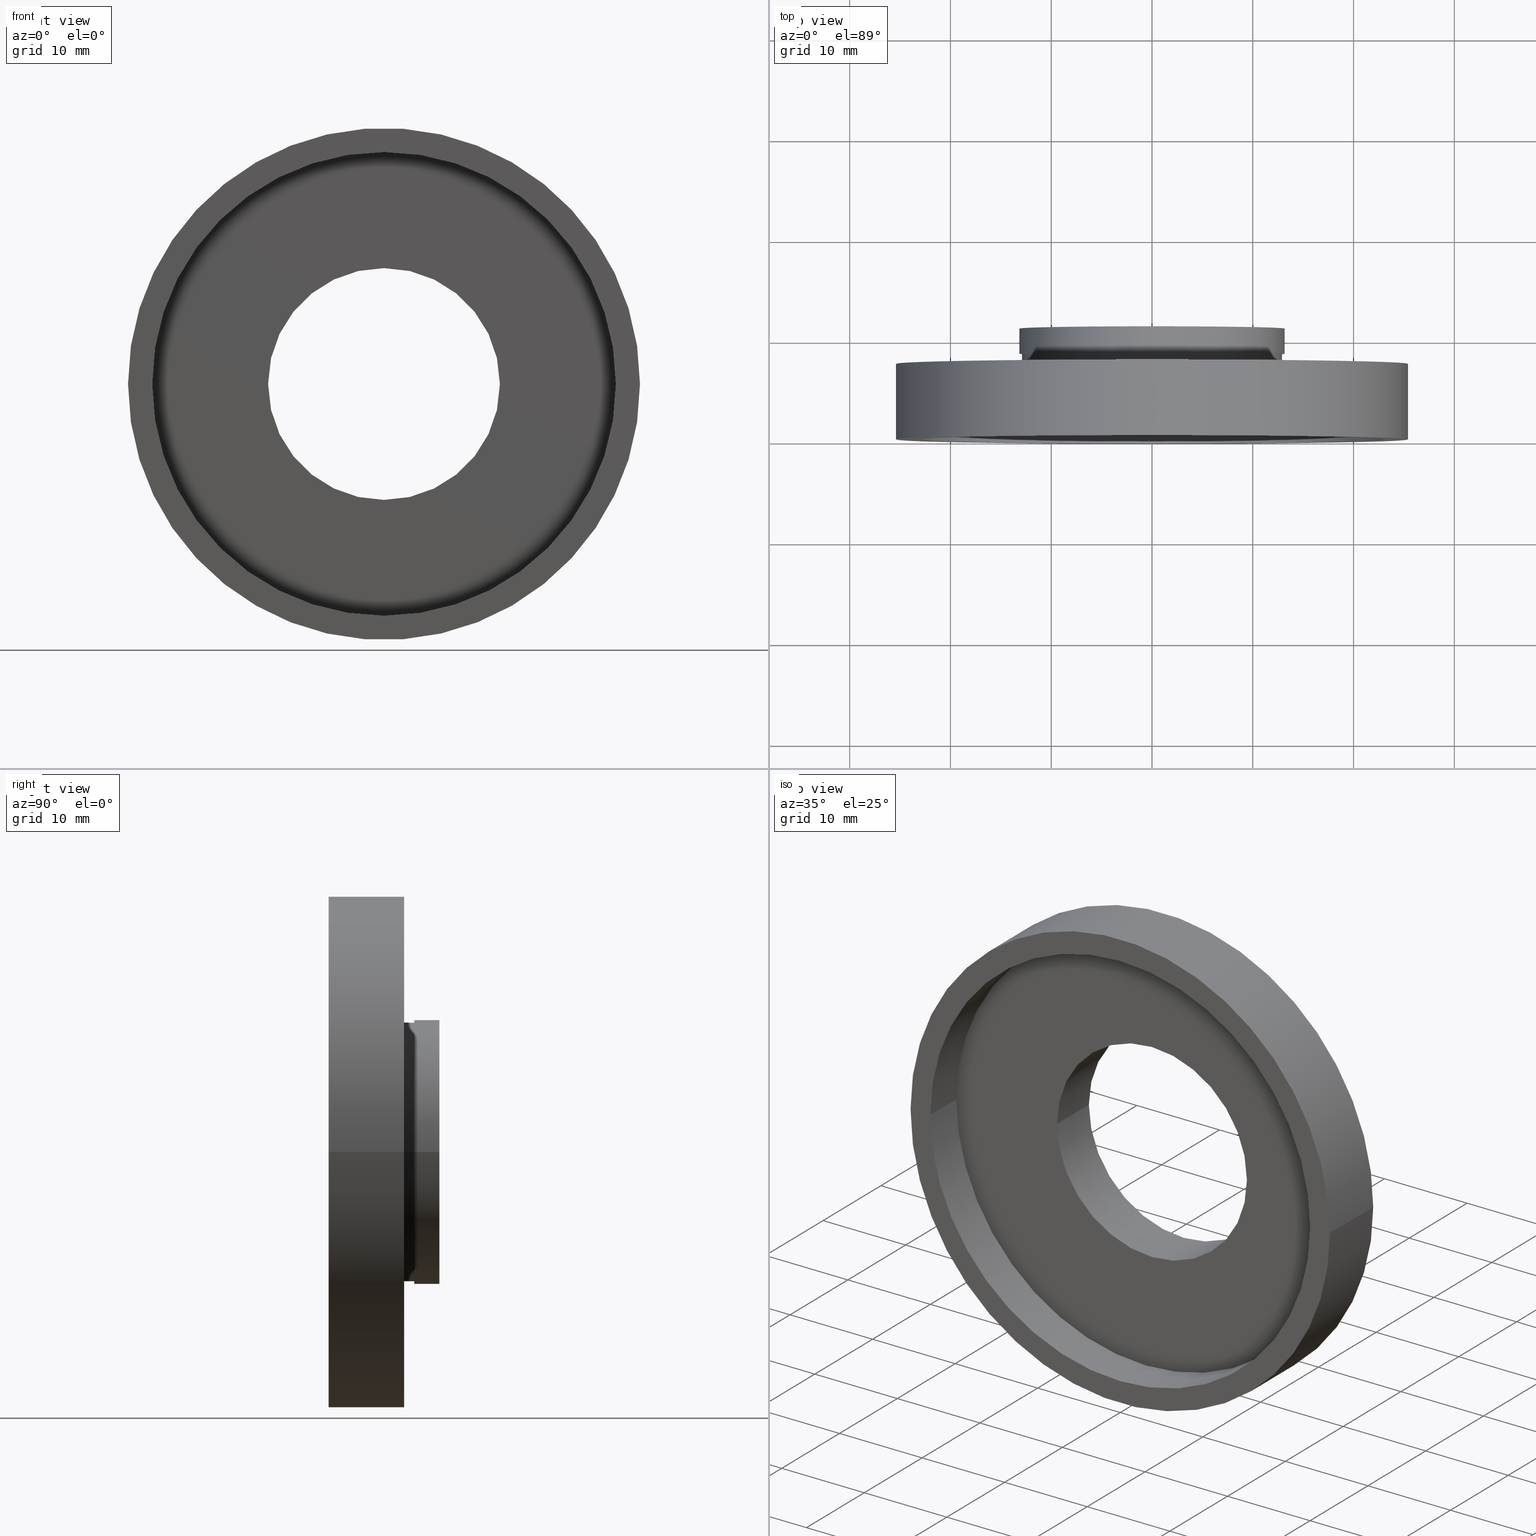
[diagram: canonical four-view strip — front | top / right | iso, engineering-drawing reading convention]
A machine part, canonical four-view strip (front | top / right | iso — engineering-drawing reading convention). The complete STEP part file that produces these views, byte-faithful:
ISO-10303-21;
HEADER;
FILE_DESCRIPTION (( 'STEP AP214' ),
    '1' );
FILE_NAME ('504112.STEP',
    '2019-10-09T07:33:23',
    ( '' ),
    ( '' ),
    'SwSTEP 2.0',
    'SolidWorks 2016',
    '' );
FILE_SCHEMA (( 'AUTOMOTIVE_DESIGN' ));
ENDSEC;

DATA;
#1 = VERTEX_POINT ( 'NONE', #564 ) ;
#2 = CARTESIAN_POINT ( 'NONE',  ( 11.50000000000000000, 16.88601823708207700, 1.408343819019456200E-015 ) ) ;
#3 = PLANE ( 'NONE',  #583 ) ;
#4 = FILL_AREA_STYLE ('',( #292 ) ) ;
#5 = DIRECTION ( 'NONE',  ( -1.224646799147351000E-016, 1.000000000000000000, -0.0000000000000000000 ) ) ;
#6 = ORIENTED_EDGE ( 'NONE', *, *, #578, .T. ) ;
#7 = AXIS2_PLACEMENT_3D ( 'NONE', #206, #553, #156 ) ;
#8 = DIRECTION ( 'NONE',  ( -1.224646799147351000E-016, 1.000000000000000000, -0.0000000000000000000 ) ) ;
#9 = EDGE_LOOP ( 'NONE', ( #133, #549, #48, #330 ) ) ;
#10 = DIRECTION ( 'NONE',  ( -1.000000000000000000, -1.365923996832131600E-016, 0.0000000000000000000 ) ) ;
#11 = PRODUCT_CONTEXT ( 'NONE', #297, 'mechanical' ) ;
#12 = CARTESIAN_POINT ( 'NONE',  ( 1.394385078907593200E-015, 5.499999999999996400, 0.0000000000000000000 ) ) ;
#13 = EDGE_CURVE ( 'NONE', #68, #466, #99, .T. ) ;
#14 = FACE_BOUND ( 'NONE', #276, .T. ) ;
#15 = CARTESIAN_POINT ( 'NONE',  ( 0.0000000000000000000, 0.0000000000000000000, 0.0000000000000000000 ) ) ;
#16 = SURFACE_SIDE_STYLE ('',( #582 ) ) ;
#17 = ORIENTED_EDGE ( 'NONE', *, *, #80, .F. ) ;
#18 = DIRECTION ( 'NONE',  ( -1.000000000000000000, -1.224646799147351000E-016, 0.0000000000000000000 ) ) ;
#19 = SURFACE_STYLE_USAGE ( .BOTH. , #590 ) ;
#20 = CARTESIAN_POINT ( 'NONE',  ( 1.149455719078123100E-015, 7.499999999999996400, 0.0000000000000000000 ) ) ;
#21 = ORIENTED_EDGE ( 'NONE', *, *, #517, .T. ) ;
#22 = SURFACE_SIDE_STYLE ('',( #231 ) ) ;
#23 = DIRECTION ( 'NONE',  ( 1.000000000000000000, 1.224646799147351000E-016, 0.0000000000000000000 ) ) ;
#24 = EDGE_LOOP ( 'NONE', ( #241, #401 ) ) ;
#25 = FILL_AREA_STYLE_COLOUR ( '', #242 ) ;
#26 = SURFACE_STYLE_USAGE ( .BOTH. , #167 ) ;
#27 = AXIS2_PLACEMENT_3D ( 'NONE', #124, #354, #75 ) ;
#28 = DIRECTION ( 'NONE',  ( -1.000000000000000000, -1.224646799147351000E-016, 0.0000000000000000000 ) ) ;
#29 = ADVANCED_FACE ( 'NONE', ( #235 ), #352, .F. ) ;
#30 = EDGE_LOOP ( 'NONE', ( #339, #550 ) ) ;
#31 = CARTESIAN_POINT ( 'NONE',  ( -24.10000000000000100, 16.88601823708207300, 0.0000000000000000000 ) ) ;
#32 = DIRECTION ( 'NONE',  ( -1.000000000000000000, -1.318178933113075200E-016, 0.0000000000000000000 ) ) ;
#33 = MECHANICAL_DESIGN_GEOMETRIC_PRESENTATION_REPRESENTATION (  '', ( #191 ), #622 ) ;
#34 = FACE_OUTER_BOUND ( 'NONE', #408, .T. ) ;
#35 = ORIENTED_EDGE ( 'NONE', *, *, #384, .T. ) ;
#36 =( LENGTH_UNIT ( ) NAMED_UNIT ( * ) SI_UNIT ( .MILLI., .METRE. ) );
#37 = VERTEX_POINT ( 'NONE', #270 ) ;
#38 = CARTESIAN_POINT ( 'NONE',  ( -25.39999999999999100, -6.580049821787884700E-015, 0.0000000000000000000 ) ) ;
#39 = ORIENTED_EDGE ( 'NONE', *, *, #185, .T. ) ;
#40 = CARTESIAN_POINT ( 'NONE',  ( 0.0000000000000000000, 16.88601823708207700, 0.0000000000000000000 ) ) ;
#41 = FACE_OUTER_BOUND ( 'NONE', #43, .T. ) ;
#42 = ADVANCED_FACE ( 'NONE', ( #479 ), #228, .T. ) ;
#43 = EDGE_LOOP ( 'NONE', ( #505, #375 ) ) ;
#44 = ORIENTED_EDGE ( 'NONE', *, *, #611, .T. ) ;
#45 = VECTOR ( 'NONE', #277, 1000.000000000000000 ) ;
#46 = AXIS2_PLACEMENT_3D ( 'NONE', #40, #576, #368 ) ;
#47 = COLOUR_RGB ( '',1.000000000000000000, 1.000000000000000000, 1.000000000000000000 ) ;
#48 = ORIENTED_EDGE ( 'NONE', *, *, #95, .T. ) ;
#49 = ADVANCED_FACE ( 'NONE', ( #559 ), #138, .T. ) ;
#50 = VERTEX_POINT ( 'NONE', #571 ) ;
#51 = ORIENTED_EDGE ( 'NONE', *, *, #334, .F. ) ;
#52 = DIRECTION ( 'NONE',  ( -1.000000000000000000, -1.344746880602176000E-016, 0.0000000000000000000 ) ) ;
#53 = DIRECTION ( 'NONE',  ( 1.000000000000000000, 1.224646799147351000E-016, 0.0000000000000000000 ) ) ;
#54 = ORIENTED_EDGE ( 'NONE', *, *, #215, .F. ) ;
#55 = FACE_OUTER_BOUND ( 'NONE', #475, .T. ) ;
#56 = PLANE ( 'NONE',  #326 ) ;
#57 = MECHANICAL_DESIGN_GEOMETRIC_PRESENTATION_REPRESENTATION (  '', ( #459 ), #245 ) ;
#58 = CARTESIAN_POINT ( 'NONE',  ( 0.0000000000000000000, 16.88601823708207700, 0.0000000000000000000 ) ) ;
#59 = CARTESIAN_POINT ( 'NONE',  ( -23.00000000000000400, 4.499999999999994700, 0.0000000000000000000 ) ) ;
#60 = DIRECTION ( 'NONE',  ( 1.224646799147351000E-016, -1.000000000000000000, 0.0000000000000000000 ) ) ;
#61 =( NAMED_UNIT ( * ) PLANE_ANGLE_UNIT ( ) SI_UNIT ( $, .RADIAN. ) );
#62 =( NAMED_UNIT ( * ) SI_UNIT ( $, .STERADIAN. ) SOLID_ANGLE_UNIT ( ) );
#63 = VECTOR ( 'NONE', #514, 1000.000000000000000 ) ;
#64 = AXIS2_PLACEMENT_3D ( 'NONE', #554, #461, #509 ) ;
#65 = CARTESIAN_POINT ( 'NONE',  ( 25.39999999999999900, -3.588440821193433400E-016, 3.110602869834276900E-015 ) ) ;
#66 = DIRECTION ( 'NONE',  ( -1.224646799147351000E-016, 1.000000000000000000, -0.0000000000000000000 ) ) ;
#67 = CARTESIAN_POINT ( 'NONE',  ( 13.16000000000000200, 8.500000000000000000, 1.611635187677917100E-015 ) ) ;
#68 = VERTEX_POINT ( 'NONE', #573 ) ;
#69 = CARTESIAN_POINT ( 'NONE',  ( 1.516849758822328300E-015, 4.499999999999997300, 0.0000000000000000000 ) ) ;
#70 =( NAMED_UNIT ( * ) PLANE_ANGLE_UNIT ( ) SI_UNIT ( $, .RADIAN. ) );
#71 = ORIENTED_EDGE ( 'NONE', *, *, #424, .T. ) ;
#72 = CARTESIAN_POINT ( 'NONE',  ( 13.16000000000000000, 8.500000000000000000, 0.0000000000000000000 ) ) ;
#73 = DIRECTION ( 'NONE',  ( -1.000000000000000000, -1.079703408284319800E-016, 0.0000000000000000000 ) ) ;
#74 = AXIS2_PLACEMENT_3D ( 'NONE', #169, #356, #122 ) ;
#75 = DIRECTION ( 'NONE',  ( -1.000000000000000000, -1.508455196501571200E-016, 0.0000000000000000000 ) ) ;
#76 = VERTEX_POINT ( 'NONE', #38 ) ;
#77 = CIRCLE ( 'NONE', #227, 25.39999999999999500 ) ;
#78 = VECTOR ( 'NONE', #420, 1000.000000000000000 ) ;
#79 = CARTESIAN_POINT ( 'NONE',  ( -11.50000000000000200, 10.99999999999999500, 0.0000000000000000000 ) ) ;
#80 = EDGE_CURVE ( 'NONE', #381, #217, #503, .T. ) ;
#81 = SURFACE_STYLE_USAGE ( .BOTH. , #467 ) ;
#82 = STYLED_ITEM ( 'NONE', ( #460 ), #211 ) ;
#83 = CYLINDRICAL_SURFACE ( 'NONE', #538, 25.39999999999999900 ) ;
#84 = DIRECTION ( 'NONE',  ( -1.000000000000000000, -1.439604544379092800E-016, 0.0000000000000000000 ) ) ;
#85 = ADVANCED_FACE ( 'NONE', ( #332, #91 ), #179, .F. ) ;
#86 = EDGE_CURVE ( 'NONE', #190, #489, #410, .T. ) ;
#87 = CARTESIAN_POINT ( 'NONE',  ( 0.0000000000000000000, 16.88601823708207700, 0.0000000000000000000 ) ) ;
#88 = PRESENTATION_LAYER_ASSIGNMENT (  '', '', ( #188 ) ) ;
#89 = CARTESIAN_POINT ( 'NONE',  ( 25.39999999999999900, 16.88601823708208000, 3.110602869834276900E-015 ) ) ;
#90 = VECTOR ( 'NONE', #165, 1000.000000000000000 ) ;
#91 = FACE_BOUND ( 'NONE', #513, .T. ) ;
#92 = DIRECTION ( 'NONE',  ( -1.000000000000000000, -1.365923996832131600E-016, 0.0000000000000000000 ) ) ;
#93 = PRESENTATION_LAYER_ASSIGNMENT (  '', '', ( #290 ) ) ;
#94 = PRESENTATION_STYLE_ASSIGNMENT (( #26 ) ) ;
#95 = EDGE_CURVE ( 'NONE', #160, #532, #121, .T. ) ;
#96 = VERTEX_POINT ( 'NONE', #371 ) ;
#97 = UNCERTAINTY_MEASURE_WITH_UNIT (LENGTH_MEASURE( 1.000000000000000100E-005 ), #441, 'distance_accuracy_value', 'NONE');
#98 = AXIS2_PLACEMENT_3D ( 'NONE', #552, #273, #608 ) ;
#99 = LINE ( 'NONE', #262, #592 ) ;
#100 = LINE ( 'NONE', #31, #63 ) ;
#101 = PRESENTATION_STYLE_ASSIGNMENT (( #296 ) ) ;
#102 =( GEOMETRIC_REPRESENTATION_CONTEXT ( 3 ) GLOBAL_UNCERTAINTY_ASSIGNED_CONTEXT ( ( #609 ) ) GLOBAL_UNIT_ASSIGNED_CONTEXT ( ( #392, #351, #341 ) ) REPRESENTATION_CONTEXT ( 'NONE', 'WORKASPACE' ) );
#103 = FACE_OUTER_BOUND ( 'NONE', #492, .T. ) ;
#104 = SURFACE_SIDE_STYLE ('',( #529 ) ) ;
#105 = ORIENTED_EDGE ( 'NONE', *, *, #527, .F. ) ;
#106 =( NAMED_UNIT ( * ) PLANE_ANGLE_UNIT ( ) SI_UNIT ( $, .RADIAN. ) );
#107 = SURFACE_SIDE_STYLE ('',( #580 ) ) ;
#108 = AXIS2_PLACEMENT_3D ( 'NONE', #358, #507, #411 ) ;
#109 = ORIENTED_EDGE ( 'NONE', *, *, #13, .F. ) ;
#110 = CARTESIAN_POINT ( 'NONE',  ( 1.394385078907593000E-015, 5.499999999999998200, 0.0000000000000000000 ) ) ;
#111 =( NAMED_UNIT ( * ) PLANE_ANGLE_UNIT ( ) SI_UNIT ( $, .RADIAN. ) );
#112 = EDGE_LOOP ( 'NONE', ( #17, #35, #140, #54 ) ) ;
#113 = DIRECTION ( 'NONE',  ( -1.000000000000000000, -1.318178933113075200E-016, 0.0000000000000000000 ) ) ;
#114 =( NAMED_UNIT ( * ) SI_UNIT ( $, .STERADIAN. ) SOLID_ANGLE_UNIT ( ) );
#115 = FACE_OUTER_BOUND ( 'NONE', #621, .T. ) ;
#116 = AXIS2_PLACEMENT_3D ( 'NONE', #118, #8, #488 ) ;
#117 = DIRECTION ( 'NONE',  ( -1.000000000000000000, -1.224646799147351000E-016, 0.0000000000000000000 ) ) ;
#118 = CARTESIAN_POINT ( 'NONE',  ( 2.067940818438636500E-015, -3.469446951953614200E-015, 0.0000000000000000000 ) ) ;
#119 = CIRCLE ( 'NONE', #422, 24.10000000000000100 ) ;
#120 = DIRECTION ( 'NONE',  ( -1.224646799147351000E-016, 1.000000000000000000, -0.0000000000000000000 ) ) ;
#121 = LINE ( 'NONE', #417, #78 ) ;
#122 = DIRECTION ( 'NONE',  ( -1.000000000000000000, -1.079703408284319800E-016, 0.0000000000000000000 ) ) ;
#123 = ORIENTED_EDGE ( 'NONE', *, *, #562, .F. ) ;
#124 = CARTESIAN_POINT ( 'NONE',  ( 7.208293393765502500E-016, 10.99999999999999600, 0.0000000000000000000 ) ) ;
#125 =( GEOMETRIC_REPRESENTATION_CONTEXT ( 3 ) GLOBAL_UNCERTAINTY_ASSIGNED_CONTEXT ( ( #495 ) ) GLOBAL_UNIT_ASSIGNED_CONTEXT ( ( #338, #61, #244 ) ) REPRESENTATION_CONTEXT ( 'NONE', 'WORKASPACE' ) );
#126 = FILL_AREA_STYLE ('',( #308 ) ) ;
#127 = DIRECTION ( 'NONE',  ( -1.224646799147351000E-016, 1.000000000000000000, -0.0000000000000000000 ) ) ;
#128 = ORIENTED_EDGE ( 'NONE', *, *, #578, .F. ) ;
#129 = ADVANCED_BREP_SHAPE_REPRESENTATION ( '504112', ( #377, #415 ), #251 ) ;
#130 = EDGE_CURVE ( 'NONE', #190, #150, #598, .T. ) ;
#131 = EDGE_CURVE ( 'NONE', #466, #569, #438, .T. ) ;
#132 = PLANE ( 'NONE',  #268 ) ;
#133 = ORIENTED_EDGE ( 'NONE', *, *, #340, .F. ) ;
#134 = STYLED_ITEM ( 'NONE', ( #304 ), #602 ) ;
#135 = CARTESIAN_POINT ( 'NONE',  ( 23.00000000000000000, 16.88601823708208000, 2.816687638038912400E-015 ) ) ;
#136 = FACE_BOUND ( 'NONE', #145, .T. ) ;
#137 = DIRECTION ( 'NONE',  ( -1.000000000000000000, -1.224646799147351000E-016, 0.0000000000000000000 ) ) ;
#138 = CYLINDRICAL_SURFACE ( 'NONE', #309, 25.39999999999999900 ) ;
#139 = AXIS2_PLACEMENT_3D ( 'NONE', #504, #201, #498 ) ;
#140 = ORIENTED_EDGE ( 'NONE', *, *, #283, .T. ) ;
#141 = CIRCLE ( 'NONE', #149, 11.50000000000000200 ) ;
#142 = ORIENTED_EDGE ( 'NONE', *, *, #86, .F. ) ;
#143 =( GEOMETRIC_REPRESENTATION_CONTEXT ( 3 ) GLOBAL_UNCERTAINTY_ASSIGNED_CONTEXT ( ( #426 ) ) GLOBAL_UNIT_ASSIGNED_CONTEXT ( ( #36, #367, #218 ) ) REPRESENTATION_CONTEXT ( 'NONE', 'WORKASPACE' ) );
#144 = FACE_BOUND ( 'NONE', #568, .T. ) ;
#145 = EDGE_LOOP ( 'NONE', ( #448, #249 ) ) ;
#146 = EDGE_LOOP ( 'NONE', ( #406, #300 ) ) ;
#147 = ORIENTED_EDGE ( 'NONE', *, *, #316, .F. ) ;
#148 = CARTESIAN_POINT ( 'NONE',  ( 11.50000000000000200, 10.99999999999999800, 0.0000000000000000000 ) ) ;
#149 = AXIS2_PLACEMENT_3D ( 'NONE', #539, #389, #405 ) ;
#150 = VERTEX_POINT ( 'NONE', #344 ) ;
#151 = CARTESIAN_POINT ( 'NONE',  ( 1.516849758822328300E-015, 4.499999999999997300, 0.0000000000000000000 ) ) ;
#152 =( NAMED_UNIT ( * ) PLANE_ANGLE_UNIT ( ) SI_UNIT ( $, .RADIAN. ) );
#153 = EDGE_CURVE ( 'NONE', #534, #500, #240, .T. ) ;
#154 = CARTESIAN_POINT ( 'NONE',  ( 12.90000000000000200, 7.500000000000000000, 1.579794370900085700E-015 ) ) ;
#155 = CARTESIAN_POINT ( 'NONE',  ( 0.0000000000000000000, 16.88601823708207700, 0.0000000000000000000 ) ) ;
#156 = DIRECTION ( 'NONE',  ( -1.000000000000000000, 0.0000000000000000000, 0.0000000000000000000 ) ) ;
#157 =( GEOMETRIC_REPRESENTATION_CONTEXT ( 3 ) GLOBAL_UNCERTAINTY_ASSIGNED_CONTEXT ( ( #540 ) ) GLOBAL_UNIT_ASSIGNED_CONTEXT ( ( #303, #450, #202 ) ) REPRESENTATION_CONTEXT ( 'NONE', 'WORKASPACE' ) );
#158 = FACE_OUTER_BOUND ( 'NONE', #30, .T. ) ;
#159 = UNCERTAINTY_MEASURE_WITH_UNIT (LENGTH_MEASURE( 1.000000000000000100E-005 ), #364, 'distance_accuracy_value', 'NONE');
#160 = VERTEX_POINT ( 'NONE', #181 ) ;
#161 = DIRECTION ( 'NONE',  ( -1.224646799147351000E-016, 1.000000000000000000, -0.0000000000000000000 ) ) ;
#162 = ORIENTED_EDGE ( 'NONE', *, *, #413, .T. ) ;
#163 = DIRECTION ( 'NONE',  ( -1.000000000000000000, -1.508455196501571400E-016, 0.0000000000000000000 ) ) ;
#164 = AXIS2_PLACEMENT_3D ( 'NONE', #293, #487, #247 ) ;
#165 = DIRECTION ( 'NONE',  ( -1.224646799147351000E-016, 1.000000000000000000, -0.0000000000000000000 ) ) ;
#166 = CYLINDRICAL_SURFACE ( 'NONE', #464, 11.50000000000000000 ) ;
#167 = SURFACE_SIDE_STYLE ('',( #278 ) ) ;
#168 = ORIENTED_EDGE ( 'NONE', *, *, #291, .F. ) ;
#169 = CARTESIAN_POINT ( 'NONE',  ( 1.516849758822328300E-015, 4.499999999999997300, 0.0000000000000000000 ) ) ;
#170 = CARTESIAN_POINT ( 'NONE',  ( 13.16000000000000200, 10.99999999999999800, 1.611635187677917100E-015 ) ) ;
#171 = DIRECTION ( 'NONE',  ( -1.224646799147351000E-016, 1.000000000000000000, -0.0000000000000000000 ) ) ;
#172 = AXIS2_PLACEMENT_3D ( 'NONE', #463, #558, #32 ) ;
#173 = DIRECTION ( 'NONE',  ( -1.000000000000000000, -1.439604544379092800E-016, 0.0000000000000000000 ) ) ;
#174 = CYLINDRICAL_SURFACE ( 'NONE', #567, 24.10000000000000100 ) ;
#175 = ORIENTED_EDGE ( 'NONE', *, *, #446, .F. ) ;
#176 = DIRECTION ( 'NONE',  ( -1.000000000000000000, 0.0000000000000000000, 0.0000000000000000000 ) ) ;
#177 = ORIENTED_EDGE ( 'NONE', *, *, #13, .T. ) ;
#178 = ORIENTED_EDGE ( 'NONE', *, *, #517, .F. ) ;
#179 = PLANE ( 'NONE',  #494 ) ;
#180 = VECTOR ( 'NONE', #5, 1000.000000000000000 ) ;
#181 = CARTESIAN_POINT ( 'NONE',  ( -11.49999999999999800, 5.499999999999996400, 0.0000000000000000000 ) ) ;
#182 = ORIENTED_EDGE ( 'NONE', *, *, #86, .T. ) ;
#183 = FACE_OUTER_BOUND ( 'NONE', #253, .T. ) ;
#184 = AXIS2_PLACEMENT_3D ( 'NONE', #69, #161, #456 ) ;
#185 = EDGE_CURVE ( 'NONE', #199, #234, #537, .T. ) ;
#186 = EDGE_CURVE ( 'NONE', #76, #610, #208, .T. ) ;
#187 = FACE_BOUND ( 'NONE', #321, .T. ) ;
#188 = STYLED_ITEM ( 'NONE', ( #195 ), #129 ) ;
#189 = ORIENTED_EDGE ( 'NONE', *, *, #131, .F. ) ;
#190 = VERTEX_POINT ( 'NONE', #203 ) ;
#191 = STYLED_ITEM ( 'NONE', ( #94 ), #561 ) ;
#192 = DIRECTION ( 'NONE',  ( 1.224646799147351000E-016, -1.000000000000000000, 0.0000000000000000000 ) ) ;
#193 = DIRECTION ( 'NONE',  ( -1.000000000000000000, -1.318178933113075500E-016, 0.0000000000000000000 ) ) ;
#194 = FILL_AREA_STYLE_COLOUR ( '', #284 ) ;
#195 = PRESENTATION_STYLE_ASSIGNMENT (( #19 ) ) ;
#196 = DIRECTION ( 'NONE',  ( -1.000000000000000000, 0.0000000000000000000, 0.0000000000000000000 ) ) ;
#197 = DIRECTION ( 'NONE',  ( 0.0000000000000000000, 0.0000000000000000000, 1.000000000000000000 ) ) ;
#198 = CARTESIAN_POINT ( 'NONE',  ( 7.208293393765502500E-016, 10.99999999999999600, 0.0000000000000000000 ) ) ;
#199 = VERTEX_POINT ( 'NONE', #455 ) ;
#200 = EDGE_LOOP ( 'NONE', ( #520, #189 ) ) ;
#201 = DIRECTION ( 'NONE',  ( -1.224646799147351000E-016, 1.000000000000000000, -0.0000000000000000000 ) ) ;
#202 =( NAMED_UNIT ( * ) SI_UNIT ( $, .STERADIAN. ) SOLID_ANGLE_UNIT ( ) );
#203 = CARTESIAN_POINT ( 'NONE',  ( 23.00000000000000000, -6.527593139147072600E-016, 2.816687638038912400E-015 ) ) ;
#204 = LINE ( 'NONE', #586, #180 ) ;
#205 = CARTESIAN_POINT ( 'NONE',  ( 12.90000000000000200, 7.499999999999999100, 0.0000000000000000000 ) ) ;
#206 = CARTESIAN_POINT ( 'NONE',  ( 0.0000000000000000000, 16.88601823708207700, 0.0000000000000000000 ) ) ;
#207 = DIRECTION ( 'NONE',  ( -1.224646799147351000E-016, 1.000000000000000000, 0.0000000000000000000 ) ) ;
#208 = CIRCLE ( 'NONE', #511, 25.39999999999999500 ) ;
#209 = DIRECTION ( 'NONE',  ( -1.224646799147351000E-016, 1.000000000000000000, -0.0000000000000000000 ) ) ;
#210 =( GEOMETRIC_REPRESENTATION_CONTEXT ( 3 ) GLOBAL_UNCERTAINTY_ASSIGNED_CONTEXT ( ( #271 ) ) GLOBAL_UNIT_ASSIGNED_CONTEXT ( ( #256, #70, #114 ) ) REPRESENTATION_CONTEXT ( 'NONE', 'WORKASPACE' ) );
#211 = ADVANCED_FACE ( 'NONE', ( #103 ), #349, .T. ) ;
#212 = FILL_AREA_STYLE ('',( #264 ) ) ;
#213 = CIRCLE ( 'NONE', #98, 13.15999999999999800 ) ;
#214 = ADVANCED_FACE ( 'NONE', ( #577 ), #83, .T. ) ;
#215 = EDGE_CURVE ( 'NONE', #217, #50, #314, .T. ) ;
#216 = EDGE_CURVE ( 'NONE', #234, #199, #252, .T. ) ;
#217 = VERTEX_POINT ( 'NONE', #560 ) ;
#218 =( NAMED_UNIT ( * ) SI_UNIT ( $, .STERADIAN. ) SOLID_ANGLE_UNIT ( ) );
#219 = ORIENTED_EDGE ( 'NONE', *, *, #584, .T. ) ;
#220 = AXIS2_PLACEMENT_3D ( 'NONE', #412, #127, #193 ) ;
#221 =( NAMED_UNIT ( * ) SI_UNIT ( $, .STERADIAN. ) SOLID_ANGLE_UNIT ( ) );
#222 = LINE ( 'NONE', #603, #366 ) ;
#223 = CARTESIAN_POINT ( 'NONE',  ( 12.90000000000000000, 16.88601823708207700, 1.579794370900085700E-015 ) ) ;
#224 = ADVANCED_FACE ( 'NONE', ( #444, #187 ), #132, .F. ) ;
#225 = CIRCLE ( 'NONE', #27, 11.50000000000000200 ) ;
#226 = DIRECTION ( 'NONE',  ( -1.224646799147351000E-016, 1.000000000000000000, 0.0000000000000000000 ) ) ;
#227 = AXIS2_PLACEMENT_3D ( 'NONE', #591, #346, #18 ) ;
#228 = CYLINDRICAL_SURFACE ( 'NONE', #46, 12.90000000000000000 ) ;
#229 = ADVANCED_FACE ( 'NONE', ( #34 ), #285, .F. ) ;
#230 = EDGE_CURVE ( 'NONE', #160, #96, #237, .T. ) ;
#231 = SURFACE_STYLE_FILL_AREA ( #254 ) ;
#232 = ORIENTED_EDGE ( 'NONE', *, *, #533, .F. ) ;
#233 = AXIS2_PLACEMENT_3D ( 'NONE', #383, #536, #52 ) ;
#234 = VERTEX_POINT ( 'NONE', #170 ) ;
#235 = FACE_OUTER_BOUND ( 'NONE', #265, .T. ) ;
#236 = SHAPE_DEFINITION_REPRESENTATION ( #480, #129 ) ;
#237 = CIRCLE ( 'NONE', #468, 11.50000000000000000 ) ;
#238 = CARTESIAN_POINT ( 'NONE',  ( -12.90000000000000000, 16.88601823708207700, 0.0000000000000000000 ) ) ;
#239 = EDGE_LOOP ( 'NONE', ( #51, #385, #162, #607 ) ) ;
#240 = CIRCLE ( 'NONE', #474, 25.39999999999999900 ) ;
#241 = ORIENTED_EDGE ( 'NONE', *, *, #186, .F. ) ;
#242 = COLOUR_RGB ( '',1.000000000000000000, 1.000000000000000000, 1.000000000000000000 ) ;
#243 = EDGE_CURVE ( 'NONE', #489, #526, #222, .T. ) ;
#244 =( NAMED_UNIT ( * ) SI_UNIT ( $, .STERADIAN. ) SOLID_ANGLE_UNIT ( ) );
#245 =( GEOMETRIC_REPRESENTATION_CONTEXT ( 3 ) GLOBAL_UNCERTAINTY_ASSIGNED_CONTEXT ( ( #97 ) ) GLOBAL_UNIT_ASSIGNED_CONTEXT ( ( #441, #106, #436 ) ) REPRESENTATION_CONTEXT ( 'NONE', 'WORKASPACE' ) );
#246 = ORIENTED_EDGE ( 'NONE', *, *, #243, .F. ) ;
#247 = DIRECTION ( 'NONE',  ( -1.000000000000000000, 0.0000000000000000000, 0.0000000000000000000 ) ) ;
#248 = DIRECTION ( 'NONE',  ( 1.224646799147351000E-016, -1.000000000000000000, 0.0000000000000000000 ) ) ;
#249 = ORIENTED_EDGE ( 'NONE', *, *, #215, .T. ) ;
#250 = EDGE_CURVE ( 'NONE', #275, #569, #100, .T. ) ;
#251 =( GEOMETRIC_REPRESENTATION_CONTEXT ( 3 ) GLOBAL_UNCERTAINTY_ASSIGNED_CONTEXT ( ( #315 ) ) GLOBAL_UNIT_ASSIGNED_CONTEXT ( ( #387, #152, #62 ) ) REPRESENTATION_CONTEXT ( 'NONE', 'WORKASPACE' ) );
#252 = CIRCLE ( 'NONE', #172, 13.16000000000000000 ) ;
#253 = EDGE_LOOP ( 'NONE', ( #142, #570, #280, #246 ) ) ;
#254 = FILL_AREA_STYLE ('',( #25 ) ) ;
#255 = PLANE ( 'NONE',  #345 ) ;
#256 =( LENGTH_UNIT ( ) NAMED_UNIT ( * ) SI_UNIT ( .MILLI., .METRE. ) );
#257 = ORIENTED_EDGE ( 'NONE', *, *, #250, .F. ) ;
#258 = MECHANICAL_DESIGN_GEOMETRIC_PRESENTATION_REPRESENTATION (  '', ( #353 ), #102 ) ;
#259 = CARTESIAN_POINT ( 'NONE',  ( 25.39999999999999900, 7.500000000000000000, 3.110602869834276900E-015 ) ) ;
#260 = PRESENTATION_STYLE_ASSIGNMENT (( #263 ) ) ;
#261 = CARTESIAN_POINT ( 'NONE',  ( 25.39999999999999900, 4.336808689942015800E-016, 0.0000000000000000000 ) ) ;
#262 = CARTESIAN_POINT ( 'NONE',  ( 24.10000000000000100, 16.88601823708208000, 2.951398785945121300E-015 ) ) ;
#263 = SURFACE_STYLE_USAGE ( .BOTH. , #22 ) ;
#264 = FILL_AREA_STYLE_COLOUR ( '', #324 ) ;
#265 = EDGE_LOOP ( 'NONE', ( #302, #333, #588, #362 ) ) ;
#266 = DIRECTION ( 'NONE',  ( -1.224646799147351000E-016, 1.000000000000000000, -0.0000000000000000000 ) ) ;
#267 = ORIENTED_EDGE ( 'NONE', *, *, #584, .F. ) ;
#268 = AXIS2_PLACEMENT_3D ( 'NONE', #261, #600, #28 ) ;
#269 = ADVANCED_FACE ( 'NONE', ( #115 ), #174, .F. ) ;
#270 = CARTESIAN_POINT ( 'NONE',  ( -12.89999999999999900, 7.499999999999996400, 0.0000000000000000000 ) ) ;
#271 = UNCERTAINTY_MEASURE_WITH_UNIT (LENGTH_MEASURE( 1.000000000000000100E-005 ), #256, 'distance_accuracy_value', 'NONE');
#272 = PRESENTATION_STYLE_ASSIGNMENT (( #335 ) ) ;
#273 = DIRECTION ( 'NONE',  ( -1.224646799147351000E-016, 1.000000000000000000, -0.0000000000000000000 ) ) ;
#274 = DIRECTION ( 'NONE',  ( -1.224646799147351000E-016, 1.000000000000000000, -0.0000000000000000000 ) ) ;
#275 = VERTEX_POINT ( 'NONE', #581 ) ;
#276 = EDGE_LOOP ( 'NONE', ( #105, #574 ) ) ;
#277 = DIRECTION ( 'NONE',  ( -1.224646799147351000E-016, 1.000000000000000000, -0.0000000000000000000 ) ) ;
#278 = SURFACE_STYLE_FILL_AREA ( #458 ) ;
#279 = DIRECTION ( 'NONE',  ( -1.000000000000000000, -1.224646799147351000E-016, 0.0000000000000000000 ) ) ;
#280 = ORIENTED_EDGE ( 'NONE', *, *, #316, .T. ) ;
#281 = PRESENTATION_LAYER_ASSIGNMENT (  '', '', ( #361 ) ) ;
#282 = ORIENTED_EDGE ( 'NONE', *, *, #562, .T. ) ;
#283 = EDGE_CURVE ( 'NONE', #37, #50, #378, .T. ) ;
#284 = COLOUR_RGB ( '',1.000000000000000000, 1.000000000000000000, 1.000000000000000000 ) ;
#285 = CYLINDRICAL_SURFACE ( 'NONE', #429, 24.10000000000000100 ) ;
#286 =( GEOMETRIC_REPRESENTATION_CONTEXT ( 3 ) GLOBAL_UNCERTAINTY_ASSIGNED_CONTEXT ( ( #370 ) ) GLOBAL_UNIT_ASSIGNED_CONTEXT ( ( #398, #111, #294 ) ) REPRESENTATION_CONTEXT ( 'NONE', 'WORKASPACE' ) );
#287 = ORIENTED_EDGE ( 'NONE', *, *, #131, .T. ) ;
#288 = ORIENTED_EDGE ( 'NONE', *, *, #216, .T. ) ;
#289 = FILL_AREA_STYLE_COLOUR ( '', #575 ) ;
#290 = STYLED_ITEM ( 'NONE', ( #260 ), #525 ) ;
#291 = EDGE_CURVE ( 'NONE', #50, #217, #393, .T. ) ;
#292 = FILL_AREA_STYLE_COLOUR ( '', #47 ) ;
#293 = CARTESIAN_POINT ( 'NONE',  ( 0.0000000000000000000, 16.88601823708207700, 0.0000000000000000000 ) ) ;
#294 =( NAMED_UNIT ( * ) SI_UNIT ( $, .STERADIAN. ) SOLID_ANGLE_UNIT ( ) );
#295 = MECHANICAL_DESIGN_GEOMETRIC_PRESENTATION_REPRESENTATION (  '', ( #361 ), #143 ) ;
#296 = SURFACE_STYLE_USAGE ( .BOTH. , #496 ) ;
#297 = APPLICATION_CONTEXT ( 'automotive_design' ) ;
#298 = FILL_AREA_STYLE ('',( #194 ) ) ;
#299 = DIRECTION ( 'NONE',  ( -1.224646799147351000E-016, 1.000000000000000000, -0.0000000000000000000 ) ) ;
#300 = ORIENTED_EDGE ( 'NONE', *, *, #384, .F. ) ;
#301 = DIRECTION ( 'NONE',  ( -1.224646799147351000E-016, 1.000000000000000000, -0.0000000000000000000 ) ) ;
#302 = ORIENTED_EDGE ( 'NONE', *, *, #130, .F. ) ;
#303 =( LENGTH_UNIT ( ) NAMED_UNIT ( * ) SI_UNIT ( .MILLI., .METRE. ) );
#304 = PRESENTATION_STYLE_ASSIGNMENT (( #545 ) ) ;
#305 = DIRECTION ( 'NONE',  ( -1.224646799147351000E-016, 1.000000000000000000, -0.0000000000000000000 ) ) ;
#306 = CARTESIAN_POINT ( 'NONE',  ( 1.149455719078123100E-015, 7.499999999999996400, 0.0000000000000000000 ) ) ;
#307 = FILL_AREA_STYLE_COLOUR ( '', #523 ) ;
#308 = FILL_AREA_STYLE_COLOUR ( '', #363 ) ;
#309 = AXIS2_PLACEMENT_3D ( 'NONE', #470, #521, #92 ) ;
#310 = MECHANICAL_DESIGN_GEOMETRIC_PRESENTATION_REPRESENTATION (  '', ( #290 ), #125 ) ;
#311 = DIRECTION ( 'NONE',  ( -1.224646799147351000E-016, 1.000000000000000000, -0.0000000000000000000 ) ) ;
#312 = VECTOR ( 'NONE', #120, 1000.000000000000000 ) ;
#313 = FACE_BOUND ( 'NONE', #146, .T. ) ;
#314 = CIRCLE ( 'NONE', #108, 12.90000000000000000 ) ;
#315 = UNCERTAINTY_MEASURE_WITH_UNIT (LENGTH_MEASURE( 1.000000000000000100E-005 ), #387, 'distance_accuracy_value', 'NONE');
#316 = EDGE_CURVE ( 'NONE', #150, #526, #543, .T. ) ;
#317 = ADVANCED_FACE ( 'NONE', ( #144, #158 ), #3, .F. ) ;
#318 = AXIS2_PLACEMENT_3D ( 'NONE', #87, #274, #176 ) ;
#319 =( NAMED_UNIT ( * ) PLANE_ANGLE_UNIT ( ) SI_UNIT ( $, .RADIAN. ) );
#320 = DIRECTION ( 'NONE',  ( -1.224646799147351000E-016, 1.000000000000000000, -0.0000000000000000000 ) ) ;
#321 = EDGE_LOOP ( 'NONE', ( #531, #182 ) ) ;
#322 = CARTESIAN_POINT ( 'NONE',  ( -24.10000000000000100, 5.499999999999993800, 0.0000000000000000000 ) ) ;
#323 = CARTESIAN_POINT ( 'NONE',  ( 2.067940818438636500E-015, -3.469446951953614200E-015, 0.0000000000000000000 ) ) ;
#324 = COLOUR_RGB ( '',1.000000000000000000, 1.000000000000000000, 1.000000000000000000 ) ;
#325 = CYLINDRICAL_SURFACE ( 'NONE', #524, 12.90000000000000000 ) ;
#326 = AXIS2_PLACEMENT_3D ( 'NONE', #148, #192, #53 ) ;
#327 = FILL_AREA_STYLE_COLOUR ( '', #380 ) ;
#328 = PRODUCT ( '504112', '504112', '', ( #11 ) ) ;
#329 = AXIS2_PLACEMENT_3D ( 'NONE', #151, #388, #434 ) ;
#330 = ORIENTED_EDGE ( 'NONE', *, *, #527, .T. ) ;
#331 = DIRECTION ( 'NONE',  ( -1.224646799147351000E-016, 1.000000000000000000, -0.0000000000000000000 ) ) ;
#332 = FACE_OUTER_BOUND ( 'NONE', #200, .T. ) ;
#333 = ORIENTED_EDGE ( 'NONE', *, *, #620, .F. ) ;
#334 = EDGE_CURVE ( 'NONE', #96, #160, #518, .T. ) ;
#335 = SURFACE_STYLE_USAGE ( .BOTH. , #104 ) ;
#336 = FACE_OUTER_BOUND ( 'NONE', #481, .T. ) ;
#337 = AXIS2_PLACEMENT_3D ( 'NONE', #72, #207, #117 ) ;
#338 =( LENGTH_UNIT ( ) NAMED_UNIT ( * ) SI_UNIT ( .MILLI., .METRE. ) );
#339 = ORIENTED_EDGE ( 'NONE', *, *, #563, .T. ) ;
#340 = EDGE_CURVE ( 'NONE', #96, #418, #613, .T. ) ;
#341 =( NAMED_UNIT ( * ) SI_UNIT ( $, .STERADIAN. ) SOLID_ANGLE_UNIT ( ) );
#342 = APPLICATION_CONTEXT ( 'automotive_design' ) ;
#343 = ORIENTED_EDGE ( 'NONE', *, *, #250, .T. ) ;
#344 = CARTESIAN_POINT ( 'NONE',  ( 23.00000000000000400, 4.500000000000000000, 2.816687638038913100E-015 ) ) ;
#345 = AXIS2_PLACEMENT_3D ( 'NONE', #205, #248, #23 ) ;
#346 = DIRECTION ( 'NONE',  ( -1.224646799147351000E-016, 1.000000000000000000, -0.0000000000000000000 ) ) ;
#347 = APPLICATION_PROTOCOL_DEFINITION ( 'draft international standard', 'automotive_design', 1998, #342 ) ;
#348 = SURFACE_STYLE_USAGE ( .BOTH. , #16 ) ;
#349 = CYLINDRICAL_SURFACE ( 'NONE', #7, 13.15999999999999800 ) ;
#350 = DIRECTION ( 'NONE',  ( -1.000000000000000000, -1.365923996832131600E-016, 0.0000000000000000000 ) ) ;
#351 =( NAMED_UNIT ( * ) PLANE_ANGLE_UNIT ( ) SI_UNIT ( $, .RADIAN. ) );
#352 = CYLINDRICAL_SURFACE ( 'NONE', #409, 23.00000000000000000 ) ;
#353 = STYLED_ITEM ( 'NONE', ( #101 ), #407 ) ;
#354 = DIRECTION ( 'NONE',  ( -1.224646799147351000E-016, 1.000000000000000000, -0.0000000000000000000 ) ) ;
#355 = ORIENTED_EDGE ( 'NONE', *, *, #230, .T. ) ;
#356 = DIRECTION ( 'NONE',  ( -1.224646799147351000E-016, 1.000000000000000000, -0.0000000000000000000 ) ) ;
#357 = CARTESIAN_POINT ( 'NONE',  ( 1.394385078907593000E-015, 5.499999999999998200, 0.0000000000000000000 ) ) ;
#358 = CARTESIAN_POINT ( 'NONE',  ( 1.026991039163387700E-015, 8.499999999999998200, 0.0000000000000000000 ) ) ;
#359 = CARTESIAN_POINT ( 'NONE',  ( 0.0000000000000000000, 16.88601823708207700, 0.0000000000000000000 ) ) ;
#360 = EDGE_LOOP ( 'NONE', ( #39, #288 ) ) ;
#361 = STYLED_ITEM ( 'NONE', ( #469 ), #29 ) ;
#362 = ORIENTED_EDGE ( 'NONE', *, *, #485, .T. ) ;
#363 = COLOUR_RGB ( '',1.000000000000000000, 1.000000000000000000, 1.000000000000000000 ) ;
#364 =( LENGTH_UNIT ( ) NAMED_UNIT ( * ) SI_UNIT ( .MILLI., .METRE. ) );
#365 = CIRCLE ( 'NONE', #220, 13.15999999999999800 ) ;
#366 = VECTOR ( 'NONE', #311, 1000.000000000000000 ) ;
#367 =( NAMED_UNIT ( * ) PLANE_ANGLE_UNIT ( ) SI_UNIT ( $, .RADIAN. ) );
#368 = DIRECTION ( 'NONE',  ( -1.000000000000000000, 0.0000000000000000000, 0.0000000000000000000 ) ) ;
#369 = ORIENTED_EDGE ( 'NONE', *, *, #585, .T. ) ;
#370 = UNCERTAINTY_MEASURE_WITH_UNIT (LENGTH_MEASURE( 1.000000000000000100E-005 ), #398, 'distance_accuracy_value', 'NONE');
#371 = CARTESIAN_POINT ( 'NONE',  ( 11.50000000000000200, 5.500000000000000000, 1.408343819019456600E-015 ) ) ;
#372 = ADVANCED_FACE ( 'NONE', ( #14, #428 ), #56, .F. ) ;
#373 = MECHANICAL_DESIGN_GEOMETRIC_PRESENTATION_REPRESENTATION (  '', ( #82 ), #210 ) ;
#374 = AXIS2_PLACEMENT_3D ( 'NONE', #306, #454, #10 ) ;
#375 = ORIENTED_EDGE ( 'NONE', *, *, #153, .T. ) ;
#376 = ORIENTED_EDGE ( 'NONE', *, *, #484, .T. ) ;
#377 = MANIFOLD_SOLID_BREP ( '��ת1', #432 ) ;
#378 = LINE ( 'NONE', #238, #566 ) ;
#379 = EDGE_LOOP ( 'NONE', ( #555, #376, #6, #433 ) ) ;
#380 = COLOUR_RGB ( '',1.000000000000000000, 1.000000000000000000, 1.000000000000000000 ) ;
#381 = VERTEX_POINT ( 'NONE', #154 ) ;
#382 = AXIS2_PLACEMENT_3D ( 'NONE', #58, #482, #163 ) ;
#383 = CARTESIAN_POINT ( 'NONE',  ( 1.026991039163387700E-015, 8.499999999999998200, 0.0000000000000000000 ) ) ;
#384 = EDGE_CURVE ( 'NONE', #381, #37, #478, .T. ) ;
#385 = ORIENTED_EDGE ( 'NONE', *, *, #340, .T. ) ;
#386 = DIRECTION ( 'NONE',  ( 1.000000000000000000, 1.224646799147351000E-016, 0.0000000000000000000 ) ) ;
#387 =( LENGTH_UNIT ( ) NAMED_UNIT ( * ) SI_UNIT ( .MILLI., .METRE. ) );
#388 = DIRECTION ( 'NONE',  ( -1.224646799147351000E-016, 1.000000000000000000, -0.0000000000000000000 ) ) ;
#389 = DIRECTION ( 'NONE',  ( -1.224646799147351000E-016, 1.000000000000000000, -0.0000000000000000000 ) ) ;
#390 = DIRECTION ( 'NONE',  ( -1.224646799147351000E-016, 1.000000000000000000, -0.0000000000000000000 ) ) ;
#391 = PRESENTATION_LAYER_ASSIGNMENT (  '', '', ( #82 ) ) ;
#392 =( LENGTH_UNIT ( ) NAMED_UNIT ( * ) SI_UNIT ( .MILLI., .METRE. ) );
#393 = CIRCLE ( 'NONE', #233, 12.90000000000000000 ) ;
#394 = PLANE ( 'NONE',  #337 ) ;
#395 = DIRECTION ( 'NONE',  ( -1.224646799147351000E-016, 1.000000000000000000, -0.0000000000000000000 ) ) ;
#396 = ORIENTED_EDGE ( 'NONE', *, *, #485, .F. ) ;
#397 = CIRCLE ( 'NONE', #374, 25.39999999999999900 ) ;
#398 =( LENGTH_UNIT ( ) NAMED_UNIT ( * ) SI_UNIT ( .MILLI., .METRE. ) );
#399 = ORIENTED_EDGE ( 'NONE', *, *, #186, .T. ) ;
#400 = CARTESIAN_POINT ( 'NONE',  ( 2.067940818438636500E-015, -3.469446951953614200E-015, 0.0000000000000000000 ) ) ;
#401 = ORIENTED_EDGE ( 'NONE', *, *, #484, .F. ) ;
#402 = CARTESIAN_POINT ( 'NONE',  ( 13.15999999999999800, 16.88601823708207700, 1.611635187677916700E-015 ) ) ;
#403 = CIRCLE ( 'NONE', #74, 24.10000000000000100 ) ;
#404 = DIRECTION ( 'NONE',  ( -1.224646799147351000E-016, 1.000000000000000000, -0.0000000000000000000 ) ) ;
#405 = DIRECTION ( 'NONE',  ( -1.000000000000000000, -1.508455196501571200E-016, 0.0000000000000000000 ) ) ;
#406 = ORIENTED_EDGE ( 'NONE', *, *, #611, .F. ) ;
#407 = ADVANCED_FACE ( 'NONE', ( #183 ), #614, .F. ) ;
#408 = EDGE_LOOP ( 'NONE', ( #109, #416, #343, #71 ) ) ;
#409 = AXIS2_PLACEMENT_3D ( 'NONE', #359, #171, #601 ) ;
#410 = CIRCLE ( 'NONE', #528, 22.99999999999999600 ) ;
#411 = DIRECTION ( 'NONE',  ( -1.000000000000000000, -1.344746880602176000E-016, 0.0000000000000000000 ) ) ;
#412 = CARTESIAN_POINT ( 'NONE',  ( 1.026991039163387700E-015, 8.499999999999998200, 0.0000000000000000000 ) ) ;
#413 = EDGE_CURVE ( 'NONE', #418, #532, #225, .T. ) ;
#414 = VECTOR ( 'NONE', #331, 1000.000000000000000 ) ;
#415 = AXIS2_PLACEMENT_3D ( 'NONE', #15, #197, #542 ) ;
#416 = ORIENTED_EDGE ( 'NONE', *, *, #563, .F. ) ;
#417 = CARTESIAN_POINT ( 'NONE',  ( -11.50000000000000000, 16.88601823708207700, 0.0000000000000000000 ) ) ;
#418 = VERTEX_POINT ( 'NONE', #589 ) ;
#419 = EDGE_LOOP ( 'NONE', ( #399, #369, #175, #128 ) ) ;
#420 = DIRECTION ( 'NONE',  ( -1.224646799147351000E-016, 1.000000000000000000, -0.0000000000000000000 ) ) ;
#421 = CYLINDRICAL_SURFACE ( 'NONE', #318, 13.15999999999999800 ) ;
#422 = AXIS2_PLACEMENT_3D ( 'NONE', #541, #301, #452 ) ;
#423 = DIRECTION ( 'NONE',  ( -1.224646799147351000E-016, 1.000000000000000000, -0.0000000000000000000 ) ) ;
#424 = EDGE_CURVE ( 'NONE', #569, #466, #119, .T. ) ;
#425 = PRESENTATION_LAYER_ASSIGNMENT (  '', '', ( #134 ) ) ;
#426 = UNCERTAINTY_MEASURE_WITH_UNIT (LENGTH_MEASURE( 1.000000000000000100E-005 ), #36, 'distance_accuracy_value', 'NONE');
#427 = CIRCLE ( 'NONE', #64, 24.10000000000000100 ) ;
#428 = FACE_OUTER_BOUND ( 'NONE', #360, .T. ) ;
#429 = AXIS2_PLACEMENT_3D ( 'NONE', #510, #209, #84 ) ;
#430 = ADVANCED_FACE ( 'NONE', ( #457 ), #325, .T. ) ;
#431 = ORIENTED_EDGE ( 'NONE', *, *, #462, .F. ) ;
#432 = CLOSED_SHELL ( 'NONE', ( #49, #42, #211, #525, #269, #407, #224, #29, #317, #229, #85, #602, #372, #561, #515, #430, #618, #214 ) ) ;
#433 = ORIENTED_EDGE ( 'NONE', *, *, #153, .F. ) ;
#434 = DIRECTION ( 'NONE',  ( -1.000000000000000000, -1.131341397376178300E-016, 0.0000000000000000000 ) ) ;
#435 = CIRCLE ( 'NONE', #490, 12.90000000000000000 ) ;
#436 =( NAMED_UNIT ( * ) SI_UNIT ( $, .STERADIAN. ) SOLID_ANGLE_UNIT ( ) );
#437 = VECTOR ( 'NONE', #548, 1000.000000000000000 ) ;
#438 = CIRCLE ( 'NONE', #605, 24.10000000000000100 ) ;
#439 = DIRECTION ( 'NONE',  ( -1.224646799147351000E-016, 1.000000000000000000, -0.0000000000000000000 ) ) ;
#440 = AXIS2_PLACEMENT_3D ( 'NONE', #198, #299, #113 ) ;
#441 =( LENGTH_UNIT ( ) NAMED_UNIT ( * ) SI_UNIT ( .MILLI., .METRE. ) );
#442 = FACE_OUTER_BOUND ( 'NONE', #239, .T. ) ;
#443 = LINE ( 'NONE', #89, #90 ) ;
#444 = FACE_OUTER_BOUND ( 'NONE', #24, .T. ) ;
#445 = CARTESIAN_POINT ( 'NONE',  ( 23.00000000000000400, 4.500000000000000000, 0.0000000000000000000 ) ) ;
#446 = EDGE_CURVE ( 'NONE', #500, #534, #397, .T. ) ;
#447 = ORIENTED_EDGE ( 'NONE', *, *, #216, .F. ) ;
#448 = ORIENTED_EDGE ( 'NONE', *, *, #291, .T. ) ;
#449 = CARTESIAN_POINT ( 'NONE',  ( -22.99999999999999300, -6.286134589992521000E-015, 0.0000000000000000000 ) ) ;
#450 =( NAMED_UNIT ( * ) PLANE_ANGLE_UNIT ( ) SI_UNIT ( $, .RADIAN. ) );
#451 = MECHANICAL_DESIGN_GEOMETRIC_PRESENTATION_REPRESENTATION (  '', ( #134 ), #157 ) ;
#452 = DIRECTION ( 'NONE',  ( -1.000000000000000000, -1.079703408284319800E-016, 0.0000000000000000000 ) ) ;
#453 = DIRECTION ( 'NONE',  ( -1.000000000000000000, -1.365923996832131600E-016, 0.0000000000000000000 ) ) ;
#454 = DIRECTION ( 'NONE',  ( -1.224646799147351000E-016, 1.000000000000000000, -0.0000000000000000000 ) ) ;
#455 = CARTESIAN_POINT ( 'NONE',  ( -13.16000000000000000, 10.99999999999999500, 0.0000000000000000000 ) ) ;
#456 = DIRECTION ( 'NONE',  ( -1.000000000000000000, -1.131341397376178300E-016, 0.0000000000000000000 ) ) ;
#457 = FACE_OUTER_BOUND ( 'NONE', #112, .T. ) ;
#458 = FILL_AREA_STYLE ('',( #307 ) ) ;
#459 = STYLED_ITEM ( 'NONE', ( #272 ), #377 ) ;
#460 = PRESENTATION_STYLE_ASSIGNMENT (( #348 ) ) ;
#461 = DIRECTION ( 'NONE',  ( -1.224646799147351000E-016, 1.000000000000000000, -0.0000000000000000000 ) ) ;
#462 = EDGE_CURVE ( 'NONE', #1, #199, #623, .T. ) ;
#463 = CARTESIAN_POINT ( 'NONE',  ( 7.208293393765502500E-016, 10.99999999999999600, 0.0000000000000000000 ) ) ;
#464 = AXIS2_PLACEMENT_3D ( 'NONE', #155, #491, #587 ) ;
#465 = DIRECTION ( 'NONE',  ( -1.000000000000000000, -1.508455196501571400E-016, 0.0000000000000000000 ) ) ;
#466 = VERTEX_POINT ( 'NONE', #501 ) ;
#467 = SURFACE_SIDE_STYLE ('',( #516 ) ) ;
#468 = AXIS2_PLACEMENT_3D ( 'NONE', #357, #266, #465 ) ;
#469 = PRESENTATION_STYLE_ASSIGNMENT (( #81 ) ) ;
#470 = CARTESIAN_POINT ( 'NONE',  ( 0.0000000000000000000, 16.88601823708207700, 0.0000000000000000000 ) ) ;
#471 = VECTOR ( 'NONE', #615, 1000.000000000000000 ) ;
#472 = ORIENTED_EDGE ( 'NONE', *, *, #462, .T. ) ;
#473 = CYLINDRICAL_SURFACE ( 'NONE', #164, 11.50000000000000000 ) ;
#474 = AXIS2_PLACEMENT_3D ( 'NONE', #20, #395, #350 ) ;
#475 = EDGE_LOOP ( 'NONE', ( #123, #267 ) ) ;
#476 = ORIENTED_EDGE ( 'NONE', *, *, #80, .T. ) ;
#477 = PRODUCT_DEFINITION ( 'δ֪', '', #519, #624 ) ;
#478 = CIRCLE ( 'NONE', #139, 12.90000000000000000 ) ;
#479 = FACE_OUTER_BOUND ( 'NONE', #530, .T. ) ;
#480 = PRODUCT_DEFINITION_SHAPE ( 'NONE', 'NONE',  #477 ) ;
#481 = EDGE_LOOP ( 'NONE', ( #178, #219, #472, #447 ) ) ;
#482 = DIRECTION ( 'NONE',  ( -1.224646799147351000E-016, 1.000000000000000000, -0.0000000000000000000 ) ) ;
#483 = PRESENTATION_LAYER_ASSIGNMENT (  '', '', ( #459 ) ) ;
#484 = EDGE_CURVE ( 'NONE', #610, #76, #77, .T. ) ;
#485 = EDGE_CURVE ( 'NONE', #526, #150, #556, .T. ) ;
#486 = DIRECTION ( 'NONE',  ( -1.000000000000000000, -1.508455196501571400E-016, 0.0000000000000000000 ) ) ;
#487 = DIRECTION ( 'NONE',  ( -1.224646799147351000E-016, 1.000000000000000000, -0.0000000000000000000 ) ) ;
#488 = DIRECTION ( 'NONE',  ( -1.000000000000000000, -1.224646799147351000E-016, 0.0000000000000000000 ) ) ;
#489 = VERTEX_POINT ( 'NONE', #449 ) ;
#490 = AXIS2_PLACEMENT_3D ( 'NONE', #551, #390, #502 ) ;
#491 = DIRECTION ( 'NONE',  ( -1.224646799147351000E-016, 1.000000000000000000, -0.0000000000000000000 ) ) ;
#492 = EDGE_LOOP ( 'NONE', ( #282, #21, #522, #431 ) ) ;
#493 = DIRECTION ( 'NONE',  ( -1.224646799147351000E-016, 1.000000000000000000, -0.0000000000000000000 ) ) ;
#494 = AXIS2_PLACEMENT_3D ( 'NONE', #617, #226, #137 ) ;
#495 = UNCERTAINTY_MEASURE_WITH_UNIT (LENGTH_MEASURE( 1.000000000000000100E-005 ), #338, 'distance_accuracy_value', 'NONE');
#496 = SURFACE_SIDE_STYLE ('',( #596 ) ) ;
#497 = SURFACE_STYLE_FILL_AREA ( #298 ) ;
#498 = DIRECTION ( 'NONE',  ( -1.000000000000000000, -1.344746880602176000E-016, 0.0000000000000000000 ) ) ;
#499 = APPLICATION_PROTOCOL_DEFINITION ( 'draft international standard', 'automotive_design', 1998, #297 ) ;
#500 = VERTEX_POINT ( 'NONE', #593 ) ;
#501 = CARTESIAN_POINT ( 'NONE',  ( 24.10000000000000100, 5.499999999999999100, 2.951398785945121300E-015 ) ) ;
#502 = DIRECTION ( 'NONE',  ( -1.000000000000000000, -1.344746880602176000E-016, 0.0000000000000000000 ) ) ;
#503 = LINE ( 'NONE', #223, #45 ) ;
#504 = CARTESIAN_POINT ( 'NONE',  ( 1.149455719078122700E-015, 7.499999999999998200, 0.0000000000000000000 ) ) ;
#505 = ORIENTED_EDGE ( 'NONE', *, *, #446, .T. ) ;
#506 = DIRECTION ( 'NONE',  ( -1.000000000000000000, -1.224646799147351000E-016, 0.0000000000000000000 ) ) ;
#507 = DIRECTION ( 'NONE',  ( -1.224646799147351000E-016, 1.000000000000000000, -0.0000000000000000000 ) ) ;
#508 = LINE ( 'NONE', #402, #312 ) ;
#509 = DIRECTION ( 'NONE',  ( -1.000000000000000000, -1.079703408284319800E-016, 0.0000000000000000000 ) ) ;
#510 = CARTESIAN_POINT ( 'NONE',  ( 0.0000000000000000000, 16.88601823708207700, 0.0000000000000000000 ) ) ;
#511 = AXIS2_PLACEMENT_3D ( 'NONE', #400, #493, #506 ) ;
#512 = CARTESIAN_POINT ( 'NONE',  ( 0.0000000000000000000, 16.88601823708207700, 0.0000000000000000000 ) ) ;
#513 = EDGE_LOOP ( 'NONE', ( #355, #535 ) ) ;
#514 = DIRECTION ( 'NONE',  ( -1.224646799147351000E-016, 1.000000000000000000, -0.0000000000000000000 ) ) ;
#515 = ADVANCED_FACE ( 'NONE', ( #55, #136 ), #394, .F. ) ;
#516 = SURFACE_STYLE_FILL_AREA ( #126 ) ;
#517 = EDGE_CURVE ( 'NONE', #599, #234, #508, .T. ) ;
#518 = CIRCLE ( 'NONE', #557, 11.50000000000000000 ) ;
#519 = PRODUCT_DEFINITION_FORMATION_WITH_SPECIFIED_SOURCE ( '�κ�', '', #328, .NOT_KNOWN. ) ;
#520 = ORIENTED_EDGE ( 'NONE', *, *, #424, .F. ) ;
#521 = DIRECTION ( 'NONE',  ( -1.224646799147351000E-016, 1.000000000000000000, -0.0000000000000000000 ) ) ;
#522 = ORIENTED_EDGE ( 'NONE', *, *, #185, .F. ) ;
#523 = COLOUR_RGB ( '',1.000000000000000000, 1.000000000000000000, 1.000000000000000000 ) ;
#524 = AXIS2_PLACEMENT_3D ( 'NONE', #594, #404, #196 ) ;
#525 = ADVANCED_FACE ( 'NONE', ( #442 ), #473, .F. ) ;
#526 = VERTEX_POINT ( 'NONE', #59 ) ;
#527 = EDGE_CURVE ( 'NONE', #532, #418, #141, .T. ) ;
#528 = AXIS2_PLACEMENT_3D ( 'NONE', #323, #423, #279 ) ;
#529 = SURFACE_STYLE_FILL_AREA ( #4 ) ;
#530 = EDGE_LOOP ( 'NONE', ( #44, #476, #168, #616 ) ) ;
#531 = ORIENTED_EDGE ( 'NONE', *, *, #620, .T. ) ;
#532 = VERTEX_POINT ( 'NONE', #79 ) ;
#533 = EDGE_CURVE ( 'NONE', #68, #275, #403, .T. ) ;
#534 = VERTEX_POINT ( 'NONE', #259 ) ;
#535 = ORIENTED_EDGE ( 'NONE', *, *, #334, .T. ) ;
#536 = DIRECTION ( 'NONE',  ( -1.224646799147351000E-016, 1.000000000000000000, -0.0000000000000000000 ) ) ;
#537 = CIRCLE ( 'NONE', #440, 13.16000000000000000 ) ;
#538 = AXIS2_PLACEMENT_3D ( 'NONE', #595, #66, #453 ) ;
#539 = CARTESIAN_POINT ( 'NONE',  ( 7.208293393765502500E-016, 10.99999999999999600, 0.0000000000000000000 ) ) ;
#540 = UNCERTAINTY_MEASURE_WITH_UNIT (LENGTH_MEASURE( 1.000000000000000100E-005 ), #303, 'distance_accuracy_value', 'NONE');
#541 = CARTESIAN_POINT ( 'NONE',  ( 1.394385078907593200E-015, 5.499999999999996400, 0.0000000000000000000 ) ) ;
#542 = DIRECTION ( 'NONE',  ( 1.000000000000000000, 0.0000000000000000000, 0.0000000000000000000 ) ) ;
#543 = CIRCLE ( 'NONE', #329, 23.00000000000000400 ) ;
#544 = CARTESIAN_POINT ( 'NONE',  ( -13.15999999999999800, 16.88601823708207700, 0.0000000000000000000 ) ) ;
#545 = SURFACE_STYLE_USAGE ( .BOTH. , #107 ) ;
#546 = FILL_AREA_STYLE ('',( #327 ) ) ;
#547 = PRODUCT_RELATED_PRODUCT_CATEGORY ( 'part', '', ( #328 ) ) ;
#548 = DIRECTION ( 'NONE',  ( -1.224646799147351000E-016, 1.000000000000000000, -0.0000000000000000000 ) ) ;
#549 = ORIENTED_EDGE ( 'NONE', *, *, #230, .F. ) ;
#550 = ORIENTED_EDGE ( 'NONE', *, *, #533, .T. ) ;
#551 = CARTESIAN_POINT ( 'NONE',  ( 1.149455719078122700E-015, 7.499999999999998200, 0.0000000000000000000 ) ) ;
#552 = CARTESIAN_POINT ( 'NONE',  ( 1.026991039163387700E-015, 8.499999999999998200, 0.0000000000000000000 ) ) ;
#553 = DIRECTION ( 'NONE',  ( -1.224646799147351000E-016, 1.000000000000000000, -0.0000000000000000000 ) ) ;
#554 = CARTESIAN_POINT ( 'NONE',  ( 1.516849758822328300E-015, 4.499999999999997300, 0.0000000000000000000 ) ) ;
#555 = ORIENTED_EDGE ( 'NONE', *, *, #585, .F. ) ;
#556 = CIRCLE ( 'NONE', #184, 23.00000000000000400 ) ;
#557 = AXIS2_PLACEMENT_3D ( 'NONE', #110, #439, #486 ) ;
#558 = DIRECTION ( 'NONE',  ( -1.224646799147351000E-016, 1.000000000000000000, -0.0000000000000000000 ) ) ;
#559 = FACE_OUTER_BOUND ( 'NONE', #419, .T. ) ;
#560 = CARTESIAN_POINT ( 'NONE',  ( 12.90000000000000200, 8.500000000000000000, 1.579794370900085700E-015 ) ) ;
#561 = ADVANCED_FACE ( 'NONE', ( #336 ), #421, .T. ) ;
#562 = EDGE_CURVE ( 'NONE', #1, #599, #365, .T. ) ;
#563 = EDGE_CURVE ( 'NONE', #275, #68, #427, .T. ) ;
#564 = CARTESIAN_POINT ( 'NONE',  ( -13.15999999999999700, 8.499999999999996400, 0.0000000000000000000 ) ) ;
#565 = PRESENTATION_LAYER_ASSIGNMENT (  '', '', ( #191 ) ) ;
#566 = VECTOR ( 'NONE', #579, 1000.000000000000000 ) ;
#567 = AXIS2_PLACEMENT_3D ( 'NONE', #512, #606, #173 ) ;
#568 = EDGE_LOOP ( 'NONE', ( #396, #147 ) ) ;
#569 = VERTEX_POINT ( 'NONE', #322 ) ;
#570 = ORIENTED_EDGE ( 'NONE', *, *, #130, .T. ) ;
#571 = CARTESIAN_POINT ( 'NONE',  ( -12.89999999999999900, 8.499999999999996400, 0.0000000000000000000 ) ) ;
#572 = FACE_OUTER_BOUND ( 'NONE', #9, .T. ) ;
#573 = CARTESIAN_POINT ( 'NONE',  ( 24.10000000000000100, 4.500000000000000000, 2.951398785945121300E-015 ) ) ;
#574 = ORIENTED_EDGE ( 'NONE', *, *, #413, .F. ) ;
#575 = COLOUR_RGB ( '',1.000000000000000000, 1.000000000000000000, 1.000000000000000000 ) ;
#576 = DIRECTION ( 'NONE',  ( -1.224646799147351000E-016, 1.000000000000000000, -0.0000000000000000000 ) ) ;
#577 = FACE_OUTER_BOUND ( 'NONE', #379, .T. ) ;
#578 = EDGE_CURVE ( 'NONE', #76, #500, #204, .T. ) ;
#579 = DIRECTION ( 'NONE',  ( -1.224646799147351000E-016, 1.000000000000000000, -0.0000000000000000000 ) ) ;
#580 = SURFACE_STYLE_FILL_AREA ( #212 ) ;
#581 = CARTESIAN_POINT ( 'NONE',  ( -24.10000000000000100, 4.499999999999994700, 0.0000000000000000000 ) ) ;
#582 = SURFACE_STYLE_FILL_AREA ( #546 ) ;
#583 = AXIS2_PLACEMENT_3D ( 'NONE', #445, #60, #386 ) ;
#584 = EDGE_CURVE ( 'NONE', #599, #1, #213, .T. ) ;
#585 = EDGE_CURVE ( 'NONE', #610, #534, #443, .T. ) ;
#586 = CARTESIAN_POINT ( 'NONE',  ( -25.39999999999999900, 16.88601823708207300, 0.0000000000000000000 ) ) ;
#587 = DIRECTION ( 'NONE',  ( -1.000000000000000000, 0.0000000000000000000, 0.0000000000000000000 ) ) ;
#588 = ORIENTED_EDGE ( 'NONE', *, *, #243, .T. ) ;
#589 = CARTESIAN_POINT ( 'NONE',  ( 11.50000000000000200, 10.99999999999999800, 1.408343819019456600E-015 ) ) ;
#590 = SURFACE_SIDE_STYLE ('',( #497 ) ) ;
#591 = CARTESIAN_POINT ( 'NONE',  ( 2.067940818438636500E-015, -3.469446951953614200E-015, 0.0000000000000000000 ) ) ;
#592 = VECTOR ( 'NONE', #320, 1000.000000000000000 ) ;
#593 = CARTESIAN_POINT ( 'NONE',  ( -25.39999999999999900, 7.499999999999992900, 0.0000000000000000000 ) ) ;
#594 = CARTESIAN_POINT ( 'NONE',  ( 0.0000000000000000000, 16.88601823708207700, 0.0000000000000000000 ) ) ;
#595 = CARTESIAN_POINT ( 'NONE',  ( 0.0000000000000000000, 16.88601823708207700, 0.0000000000000000000 ) ) ;
#596 = SURFACE_STYLE_FILL_AREA ( #597 ) ;
#597 = FILL_AREA_STYLE ('',( #289 ) ) ;
#598 = LINE ( 'NONE', #135, #471 ) ;
#599 = VERTEX_POINT ( 'NONE', #67 ) ;
#600 = DIRECTION ( 'NONE',  ( -1.224646799147351000E-016, 1.000000000000000000, 0.0000000000000000000 ) ) ;
#601 = DIRECTION ( 'NONE',  ( -1.000000000000000000, -1.508455196501571400E-016, 0.0000000000000000000 ) ) ;
#602 = ADVANCED_FACE ( 'NONE', ( #572 ), #166, .F. ) ;
#603 = CARTESIAN_POINT ( 'NONE',  ( -23.00000000000000000, 16.88601823708207300, 0.0000000000000000000 ) ) ;
#604 = CIRCLE ( 'NONE', #116, 22.99999999999999600 ) ;
#605 = AXIS2_PLACEMENT_3D ( 'NONE', #12, #305, #73 ) ;
#606 = DIRECTION ( 'NONE',  ( -1.224646799147351000E-016, 1.000000000000000000, -0.0000000000000000000 ) ) ;
#607 = ORIENTED_EDGE ( 'NONE', *, *, #95, .F. ) ;
#608 = DIRECTION ( 'NONE',  ( -1.000000000000000000, -1.318178933113075500E-016, 0.0000000000000000000 ) ) ;
#609 = UNCERTAINTY_MEASURE_WITH_UNIT (LENGTH_MEASURE( 1.000000000000000100E-005 ), #392, 'distance_accuracy_value', 'NONE');
#610 = VERTEX_POINT ( 'NONE', #65 ) ;
#611 = EDGE_CURVE ( 'NONE', #37, #381, #435, .T. ) ;
#612 = MECHANICAL_DESIGN_GEOMETRIC_PRESENTATION_REPRESENTATION (  '', ( #188 ), #286 ) ;
#613 = LINE ( 'NONE', #2, #414 ) ;
#614 = CYLINDRICAL_SURFACE ( 'NONE', #382, 23.00000000000000000 ) ;
#615 = DIRECTION ( 'NONE',  ( -1.224646799147351000E-016, 1.000000000000000000, -0.0000000000000000000 ) ) ;
#616 = ORIENTED_EDGE ( 'NONE', *, *, #283, .F. ) ;
#617 = CARTESIAN_POINT ( 'NONE',  ( 11.50000000000000200, 5.499999999999999100, 0.0000000000000000000 ) ) ;
#618 = ADVANCED_FACE ( 'NONE', ( #313, #41 ), #255, .F. ) ;
#619 = PRESENTATION_LAYER_ASSIGNMENT (  '', '', ( #353 ) ) ;
#620 = EDGE_CURVE ( 'NONE', #489, #190, #604, .T. ) ;
#621 = EDGE_LOOP ( 'NONE', ( #232, #177, #287, #257 ) ) ;
#622 =( GEOMETRIC_REPRESENTATION_CONTEXT ( 3 ) GLOBAL_UNCERTAINTY_ASSIGNED_CONTEXT ( ( #159 ) ) GLOBAL_UNIT_ASSIGNED_CONTEXT ( ( #364, #319, #221 ) ) REPRESENTATION_CONTEXT ( 'NONE', 'WORKASPACE' ) );
#623 = LINE ( 'NONE', #544, #437 ) ;
#624 = PRODUCT_DEFINITION_CONTEXT ( 'detailed design', #342, 'design' ) ;
ENDSEC;
END-ISO-10303-21;
